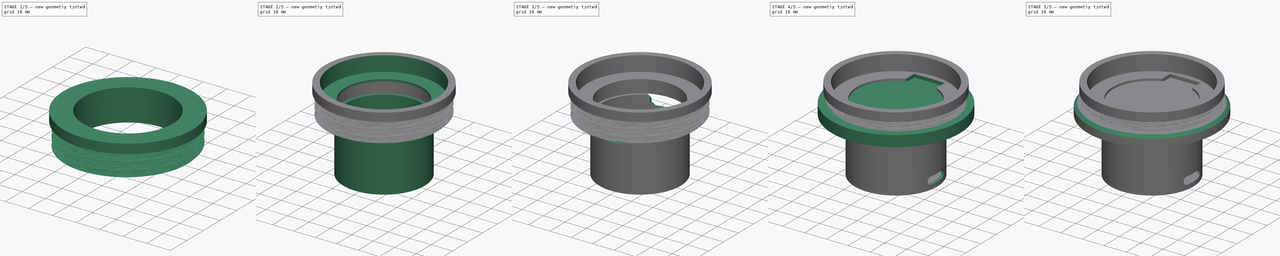
[diagram: build sequence overview — one tinted view per stage of 5, left to right]
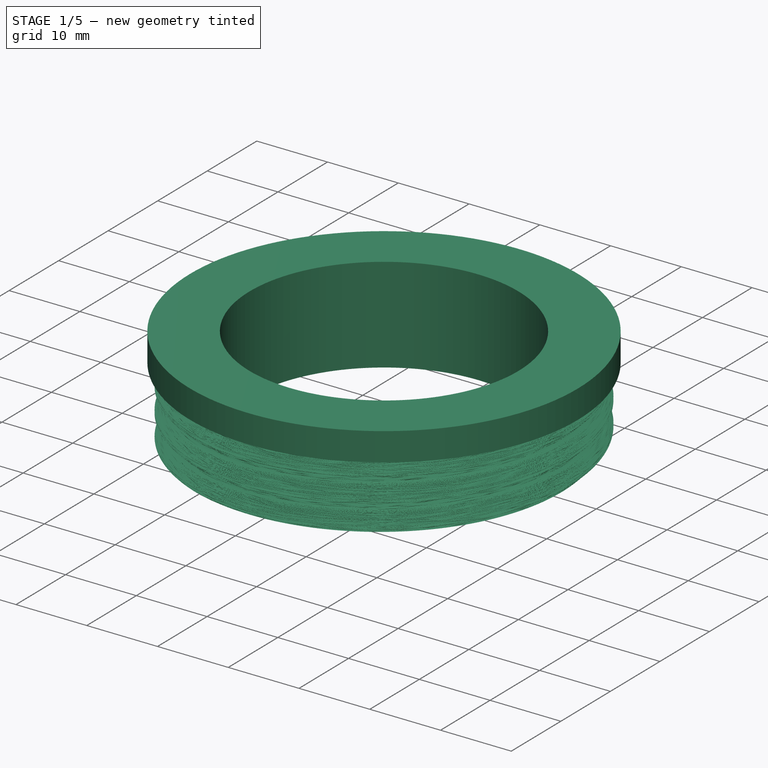
[diagram: stage 1 of 5 — iso view after this stage's code; geometry added in this stage tinted green]
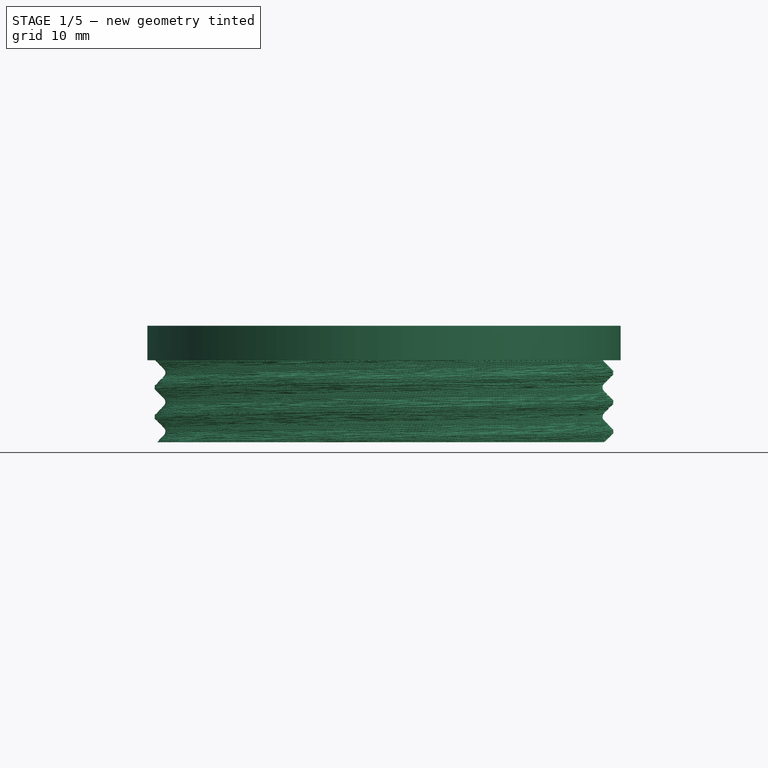
[diagram: stage 1 of 5 — front view after this stage's code; geometry added in this stage tinted green]
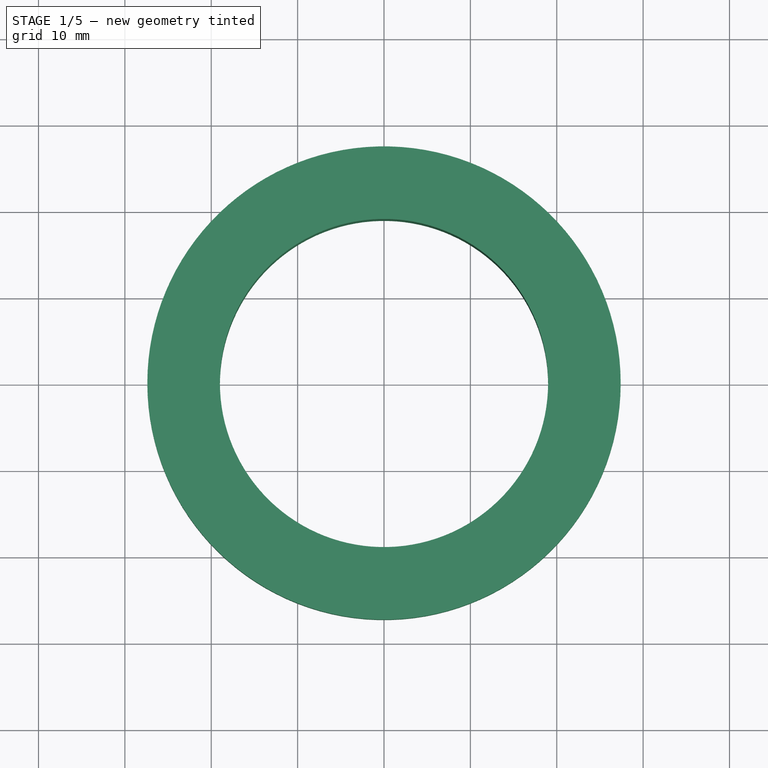
[diagram: stage 1 of 5 — top view after this stage's code; geometry added in this stage tinted green]
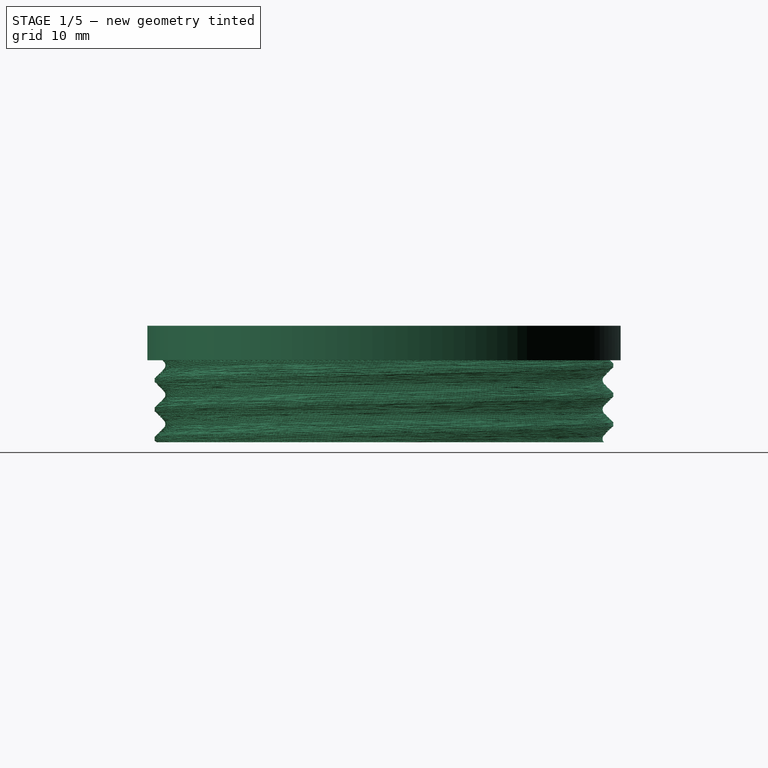
[diagram: stage 1 of 5 — right view after this stage's code; geometry added in this stage tinted green]
FCSTD DOCUMENT  (FreeCAD 0.21R33771 (Git))
Label: MSALEDFrontPiece
License: All rights reserved
LicenseURL: https://en.wikipedia.org/wiki/All_rights_reserved
objects: Sketcher::SketchObject×7, PartDesign::Pad×4, PartDesign::Body×4, PartDesign::Chamfer×3, PartDesign::Thickness×2, PartDesign::SubtractiveCylinder×2, PartDesign::SubtractiveBox×2, PartDesign::Pocket×2, Part::Part2DObjectPython×1, Part::Helix×1, PartDesign::AdditivePipe×1, PartDesign::AdditiveCylinder×1
note: 47 computed .brp shape members not serialized (recipe doc carries the construction recipe); baked Part::Feature solids carry a one-line shape summary decoded from their .brp

FEATURE [PartDesign::Body] Body003  label="CapLightInsert"
  Group = -> [Sketch007,Pad005]
  Origin = -> Origin003
  Placement = pos=(0,0,2) rot=(0,0,1;0rad)
  Tip = -> Pad005
FEATURE [Sketcher::SketchObject] Sketch008
  FullyConstrained = true
  MapMode = 5
  Support = -> [XY_Plane004]
FEATURE [Part::Part2DObjectPython] VThreadProfile  # Draft 2D object (typed FeaturePython)
  Area = 2113.6
  Closed = true
  Continuity = C2
  Height = 13
  Helix = Helix
  Instructions = Expand this with the ... button to view instructions | Sweep this object along a helix of the same pitch to produce your thread. | It is recommended to make the helix in the ThreadProfile workbench. | If there is an active Body the ThreadProfile object will be put into it.,If not it can be dragged and dropped into the body later. | If there is an active Body when the helix is made there will be made a ShapeBinder for it | For internal threads you will need to cut the Sweep object out of a cylinder, or if using Part Design sweep it as a Subtractive Pipe. | Always use Frenet mode | I have provided some presets, but it is possible there could be some errors.  Double check for mission critical applications. | Also, the tolerances might be different from what you wish to have.  I believe the internal minor diameters are all minimum and the external are all maximum.
  InternalOrExternal = 1
  MakeFace = true
  MinorDiameter = 51
  Parameterization = 1
  Pitch = 3.4
  Points = (144) [(25.471,1.11364,0),(25.3762,2.22324,0),(25.2354,3.32698,0),(25.0485,4.42299,0),(24.8157,5.50941,0),(24.5374,6.58435,0),(24.2139,7.64594,0),+137 more]
  Presets = 0
  Quality = 5
  ThreadCount = 3.82353
  Variants = 1
  Version = 1.89
  external2S_data = [-0.00461051,-0.00886426,-0.0128148,-0.0165028,-0.0199596,-0.0232105,-0.0262759,-0.0291725,-0.0319145,-0.0345137,-0.0369805,-0.0393235,-0.0415505,-0.0436681,-0.0456823,-0.0475981,-0.0494204,-0.0511532,-0.0528003,-0.0543649,-0.0558502,+698 more]
  external3S_data = [-0.00677828,-0.0128149,-0.0182584,-0.0232106,-0.0277444,-0.0319145,-0.0357632,-0.0393236,-0.0426227,-0.0456823,-0.0485208,-0.0511533,-0.0535928,-0.0558503,-0.0579353,-0.059856,-0.0616195,-0.0632319,-0.0646984,-0.0660239,-0.0672123,+698 more]
  external45_data = [-0.00137363,-0.00271738,-0.00403219,-0.00531893,-0.00657844,-0.00781148,-0.00901878,-0.010201,-0.0113589,-0.012493,-0.0136039,-0.0146921,-0.0157583,-0.0168028,-0.0178261,-0.0188288,-0.0198112,-0.0207738,-0.0217169,-0.0226409,-0.0235462,+698 more]
  external_data = [-0.00235387,-0.00461052,-0.00677828,-0.00886428,-0.0108747,-0.0128149,-0.0146895,-0.0165028,-0.0182584,-0.0199597,-0.0216095,-0.0232106,-0.0247653,-0.0262759,-0.0277444,-0.0291725,-0.0305621,-0.0319145,-0.0332313,-0.0345138,-0.0357632,+698 more]
  internal2S_data = [0,0,0,0,0,0,0,0,0,0,0,0,0,0,0,0,0,0,0,0,0,0,0,0,0,0,0,0,0,0,0,0,0,0,0,0,0,0,0,0,0,0,0,0,0,0,0,0,0,0,0,0,0,0,0,0,0,0,0,0,0,0,0,0,0,0,0,0,0,0,0,0,0,0,0,0,0,0,0,0,0,0,0,0,0,0,0,0,0,0,0.00481128,0.00962256,0.0144338,0.0192451,0.0240564,+624 more]
  internal3S_data = [0,0,0,0,0,0,0,0,0,0,0,0,0,0,0,0,0,0,0,0,0,0,0,0,0,0,0,0,0,0,0,0,0,0,0,0,0,0,0,0,0,0,0,0,0,0,0,0,0,0,0,0,0,0,0,0,0,0,0,0,0.00721688,0.0144338,0.0216506,0.0288675,0.0360844,0.0433013,0.0505181,0.057735,0.0649519,0.0721688,0.0793857,0.0866025,+647 more]
  internal45_data = [0,0,0,0,0,0,0,0,0,0,0,0,0,0,0,0,0,0,0,0,0,0,0,0,0,0,0,0,0,0,0,0,0,0,0,0,0,0,0,0,0,0,0,0,0,0,0,0,0,0,0,0,0,0,0,0,0,0,0,0,0,0,0,0,0,0,0,0,0,0,0,0,0,0,0,0,0,0,0,0,0,0,0,0,0,0,0,0,0,0,0,0,0,0,0,0,0,0,0,0,0,0,0,0,0,0,0,0,0,0,0,0,0,0,0,0,0,0,0,0,+599 more]
  internal_data = [0,0,0,0,0,0,0,0,0,0,0,0,0,0,0,0,0,0,0,0,0,0,0,0,0,0,0,0,0,0,0,0,0,0,0,0,0,0,0,0,0,0,0,0,0,0,0,0,0,0,0,0,0,0,0,0,0,0,0,0,0,0,0,0,0,0,0,0,0,0,0,0,0,0,0,0,0,0,0,0,0,0,0,0,0,0,0,0,0,0,0,0,0,0,0,0,0,0,0,0,0,0,0,0,0,0,0,0,0,0,0,0,0,0,0,0,0,0,0,0,+599 more]
  preset_names = <blob: 3959 chars omitted>
  presets_data = [0,0,0,2.20878,24.1173,24.6888,0.25,0.693,0.729,0.25,0.793,0.829,0.25,0.893,0.929,0.3,1.032,1.075,0.35,1.171,1.221,0.35,1.371,1.421,0.4,1.509,1.567,0.45,1.648,1.713,0.45,1.948,2.013,0.5,2.387,2.459,0.6,2.764,2.85,0.7,3.141,3.242,0.75,3.58,+712 more]
FEATURE [Part::Helix] Helix
  Angle = 0
  AttacherType = Attacher::AttachEngine3D
  Height = 13
  LocalCoord = 0
  Pitch = 3.4
  Radius = 0.1
  SegmentLength = 1
  Style = 0
  expr: AttachmentOffset = VThreadProfile.AttachmentOffset
  expr: Height = VThreadProfile.ThreadCount * VThreadProfile.Pitch
  expr: MapMode = VThreadProfile.MapMode
  expr: MapPathParameter = VThreadProfile.MapPathParameter
  expr: MapReversed = VThreadProfile.MapReversed
  expr: Pitch = VThreadProfile.Pitch
  expr: SegmentLength = 1
  expr: Support = VThreadProfile.Support
FEATURE [PartDesign::AdditivePipe] AdditivePipe
  AuxilleryCurvelinear = true
  AuxillerySpineTangent = false
  Binormal = (0,0,0)
  Mode = 2
  Profile = -> VThreadProfile
  Spine = -> Helix [Edge1,Edge2,Edge3,Edge4]
  SpineTangent = false
  Transformation = 0
  Transition = 0
FEATURE [PartDesign::AdditiveCylinder] Cylinder
  Angle = 360
  AttacherType = Attacher::AttachEngine3D
  AttachmentOffset = pos=(0,0,9.5) rot=(0,0,1;0rad)
  BaseFeature = -> AdditivePipe
  FirstAngle = 0
  Height = 4
  MapMode = 5
  Placement = pos=(0,0,9.5) rot=(0,0,1;0rad)
  Radius = 27.4
  SecondAngle = 0
  Support = -> [XY_Plane004]
FEATURE [PartDesign::SubtractiveCylinder] Cylinder001
  Angle = 360
  AttacherType = Attacher::AttachEngine3D
  AttachmentOffset = pos=(0,0,-19) rot=(0,0,1;0rad)
  BaseFeature = -> Cylinder
  FirstAngle = 0
  Height = 50
  MapMode = 5
  Placement = pos=(0,0,-19) rot=(0,0,1;0rad)
  Radius = 19
  SecondAngle = 0
  Support = -> [XY_Plane004]
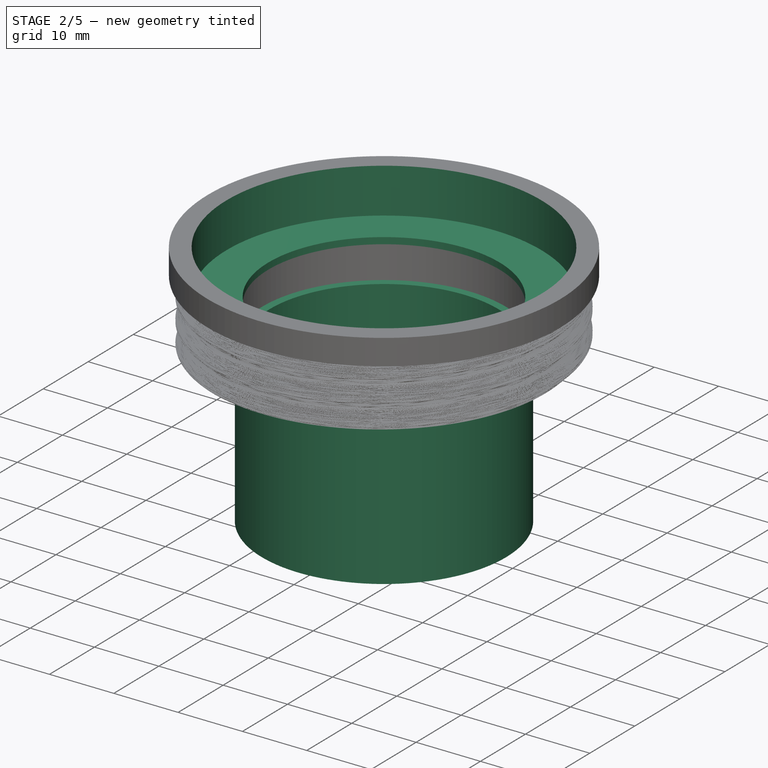
[diagram: stage 2 of 5 — iso view after this stage's code; geometry added in this stage tinted green]
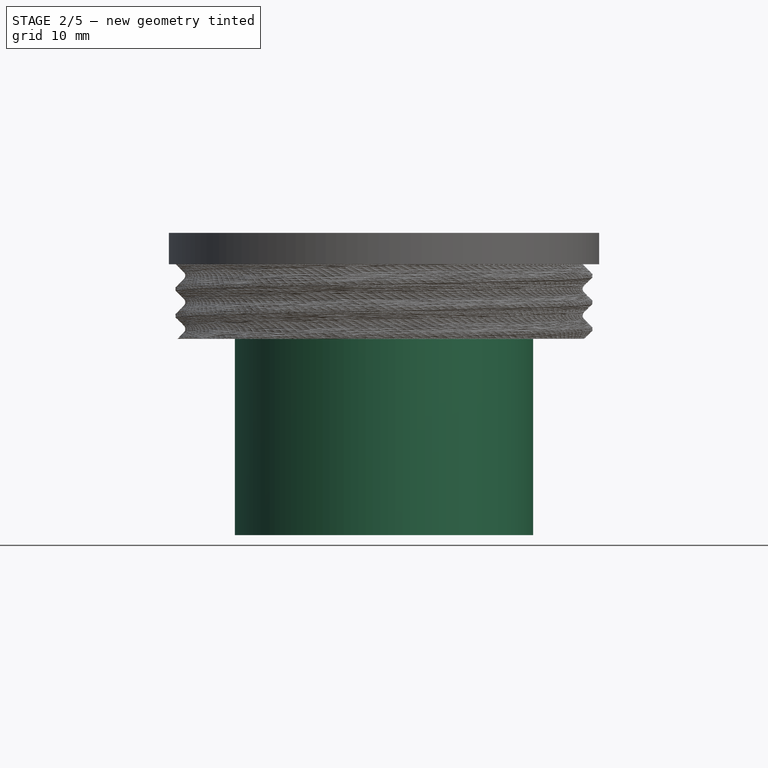
[diagram: stage 2 of 5 — front view after this stage's code; geometry added in this stage tinted green]
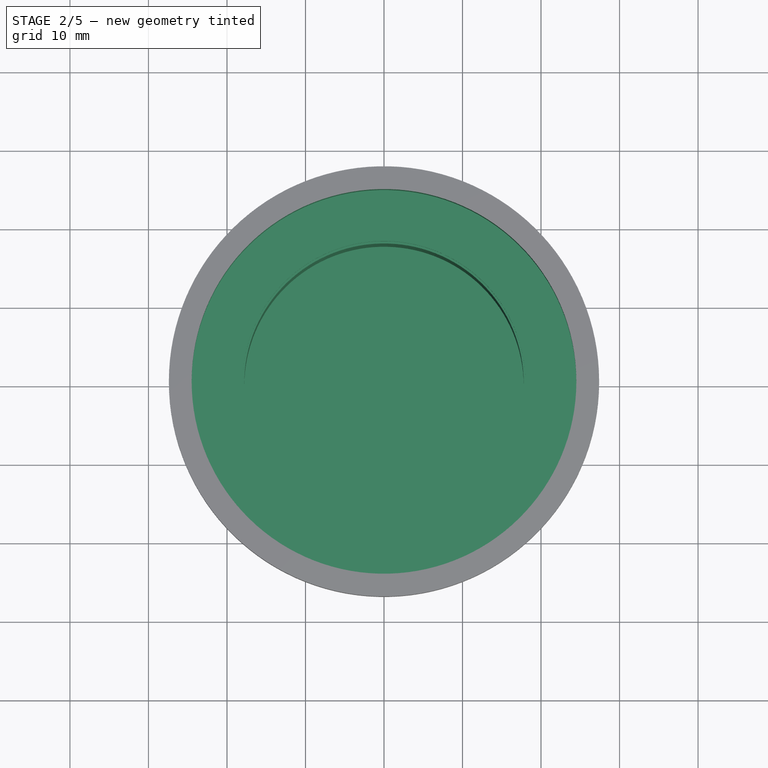
[diagram: stage 2 of 5 — top view after this stage's code; geometry added in this stage tinted green]
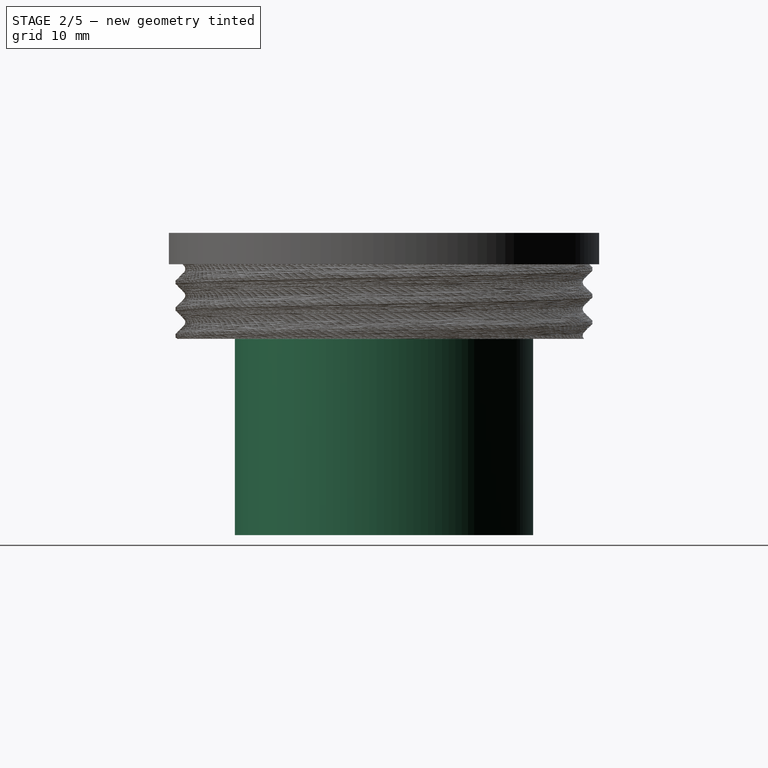
[diagram: stage 2 of 5 — right view after this stage's code; geometry added in this stage tinted green]
FEATURE [PartDesign::SubtractiveCylinder] Cylinder002
  Angle = 360
  AttacherType = Attacher::AttachEngine3D
  AttachmentOffset = pos=(0,0,-7) rot=(0,0,1;0rad)
  BaseFeature = -> Cylinder001
  FirstAngle = 0
  Height = 10
  MapMode = 5
  Placement = pos=(0,0,6.5) rot=(0,0,1;0rad)
  Radius = 24.5
  SecondAngle = 0
  Support = -> [Cylinder001]
FEATURE [Sketcher::SketchObject] Sketch010
  FullyConstrained = true
  MapMode = 5
  Support = -> [XY_Plane006]
  sketch-geometry (1):
    g0: Circle CenterX=0 CenterY=0 CenterZ=0 NormalX=0 NormalY=0 NormalZ=1 AngleXU=0 Radius=19
  constraints (2):
    c: Coincident(g0,g-1)
    c: Diameter(g0) = 38
FEATURE [PartDesign::Pad] Pad007
  Direction = (0,0,1)
  Length = 25
  Length2 = 10
  Profile = -> Sketch010
  ReferenceAxis = -> Sketch010 [N_Axis]
  Reversed = true
  Type = 0
FEATURE [PartDesign::Thickness] Thickness001
  Base = -> Pad007 [Face2]
  BaseFeature = -> Pad007
  Intersection = false
  Join = 0
  Mode = 0
  Reversed = true
  SupportTransform = false
  Value = 1.2
FEATURE [PartDesign::Body] Body006  label="ElectronicsHolder"
  Group = -> [Sketch010,Pad007,Thickness001,Box001,Chamfer002,Sketch012,Pocket,Sketch013,Pocket002]
  Origin = -> Origin006
  Placement = pos=(0,0,-3) rot=(0,0,1;0rad)
  Tip = -> Pocket002
FEATURE [PartDesign::Pad] Pad008
  BaseFeature = -> Cylinder002
  Direction = (0,0,1)
  Length = 1
  Length2 = 10
  Placement = pos=(0,0,6.5) rot=(0,0,1;0rad)
  Profile = -> Sketch011
  ReferenceAxis = -> Sketch011 [N_Axis]
  Reversed = true
  Type = 0
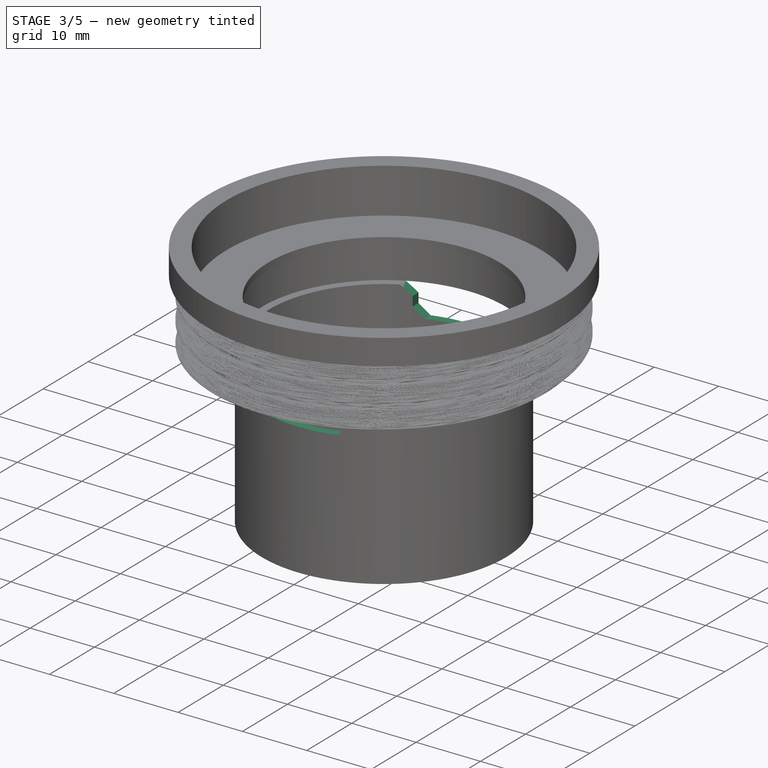
[diagram: stage 3 of 5 — iso view after this stage's code; geometry added in this stage tinted green]
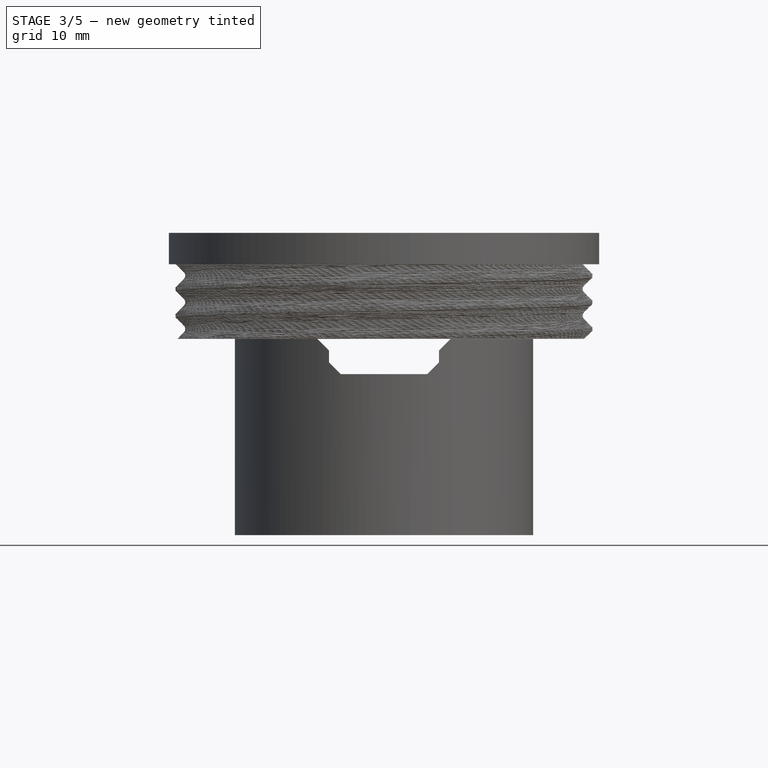
[diagram: stage 3 of 5 — front view after this stage's code; geometry added in this stage tinted green]
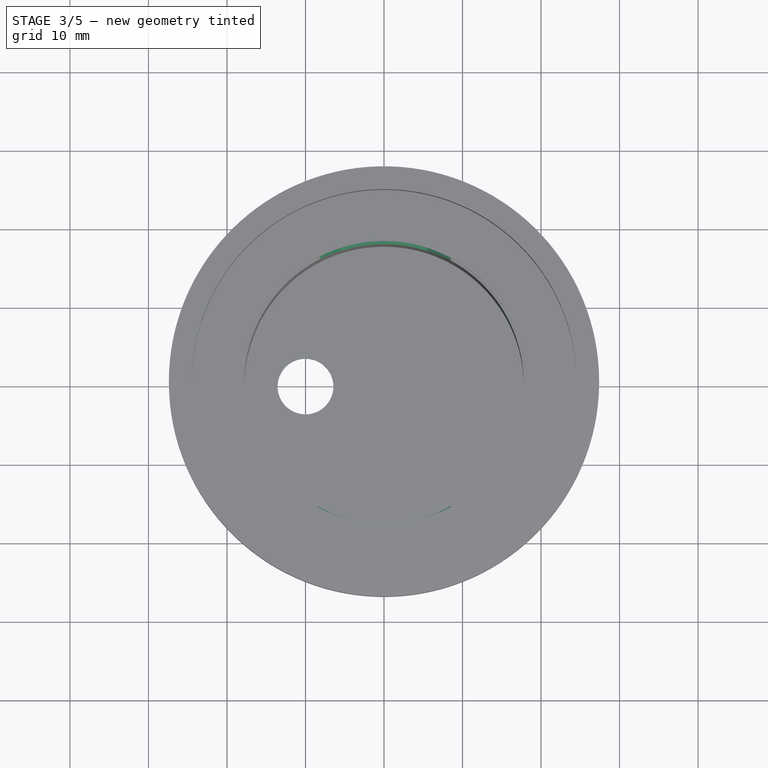
[diagram: stage 3 of 5 — top view after this stage's code; geometry added in this stage tinted green]
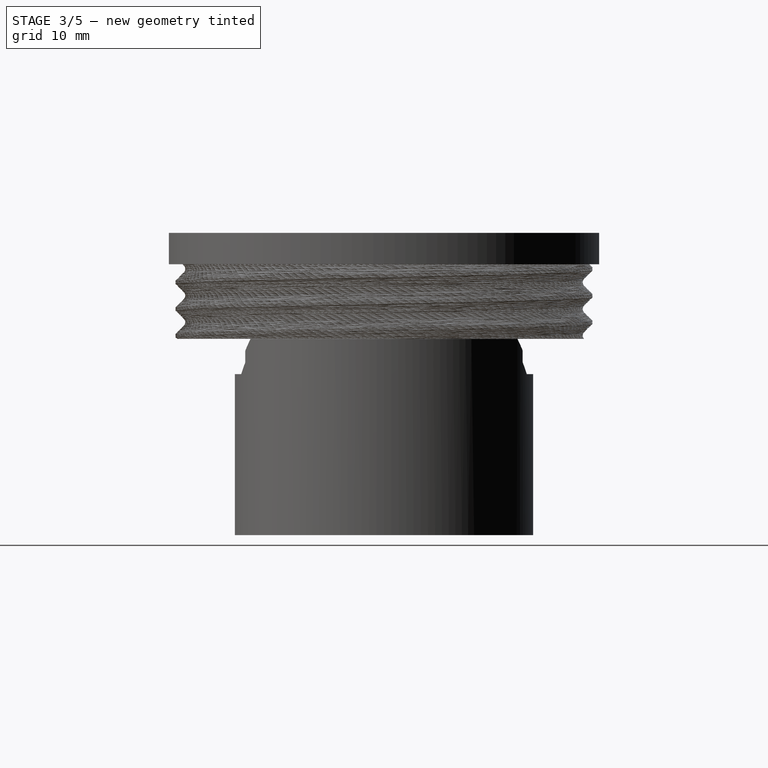
[diagram: stage 3 of 5 — right view after this stage's code; geometry added in this stage tinted green]
FEATURE [Sketcher::SketchObject] Sketch011
  AttachmentOffset = pos=(0,0,6.5) rot=(0,0,1;0rad)
  FullyConstrained = true
  MapMode = 5
  Placement = pos=(0,0,6.5) rot=(0,0,1;0rad)
  Support = -> [XY_Plane004]
  sketch-geometry (2):
    g0: Circle CenterX=0 CenterY=0 CenterZ=0 NormalX=0 NormalY=0 NormalZ=1 AngleXU=0 Radius=19
    g1: Circle CenterX=0 CenterY=0 CenterZ=0 NormalX=0 NormalY=0 NormalZ=1 AngleXU=0 Radius=18
  constraints (4):
    c: Coincident(g0,g-1)
    c: Coincident(g1,g0)
    c: Diameter(g0) = 38
    c: Diameter(g1) = 36
FEATURE [PartDesign::SubtractiveBox] Box001
  AttacherType = Attacher::AttachEngine3D
  AttachmentOffset = pos=(-7,-24,-4.5) rot=(0,0,1;0rad)
  BaseFeature = -> Thickness001
  Height = 10
  Length = 14
  MapMode = 5
  Placement = pos=(-7,-24,-4.5) rot=(0,0,1;0rad)
  Support = -> [XY_Plane004]
  Width = 50
FEATURE [PartDesign::Chamfer] Chamfer002
  Angle = 45
  Base = -> Box001 [Edge16,Edge15,Edge27,Edge12,Edge25,Edge23,Edge18,Edge21]
  BaseFeature = -> Box001
  ChamferType = 0
  FlipDirection = false
  Placement = pos=(-7,-24,-4.5) rot=(0,0,1;0rad)
  Size = 1.5
  Size2 = 1
  SupportTransform = false
  UseAllEdges = false
FEATURE [Sketcher::SketchObject] Sketch012
  AttachmentOffset = pos=(0,0,-4) rot=(0,0,1;0rad)
  FullyConstrained = true
  MapMode = 5
  Placement = pos=(0,0,-4) rot=(0,0,1;0rad)
  Support = -> [XY_Plane006]
  sketch-geometry (1):
    g0: Circle CenterX=-10 CenterY=0 CenterZ=0 NormalX=0 NormalY=0 NormalZ=1 AngleXU=0 Radius=3.55
  constraints (3):
    c: PointOnObject(g0,g-1)
    c: Diameter(g0) = 7.1
    c: Distance(g0,g-1) = 10
FEATURE [PartDesign::Pocket] Pocket
  BaseFeature = -> Chamfer002
  Direction = (0,0,-1)
  Length = 23
  Length2 = 5
  Placement = pos=(-7,-24,-4.5) rot=(0,0,1;0rad)
  Profile = -> Sketch012
  ReferenceAxis = -> Sketch012 [N_Axis]
  Type = 0
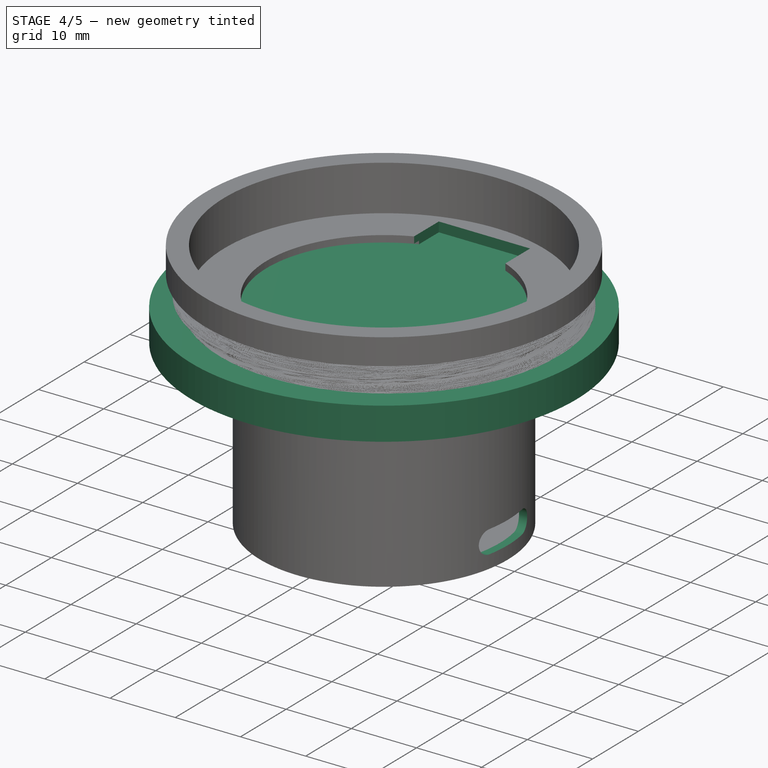
[diagram: stage 4 of 5 — iso view after this stage's code; geometry added in this stage tinted green]
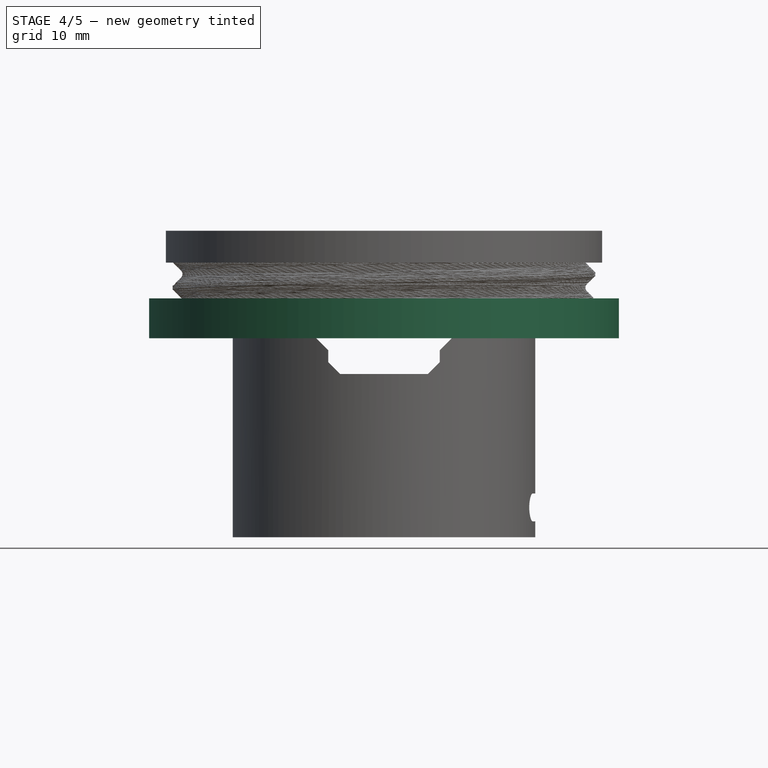
[diagram: stage 4 of 5 — front view after this stage's code; geometry added in this stage tinted green]
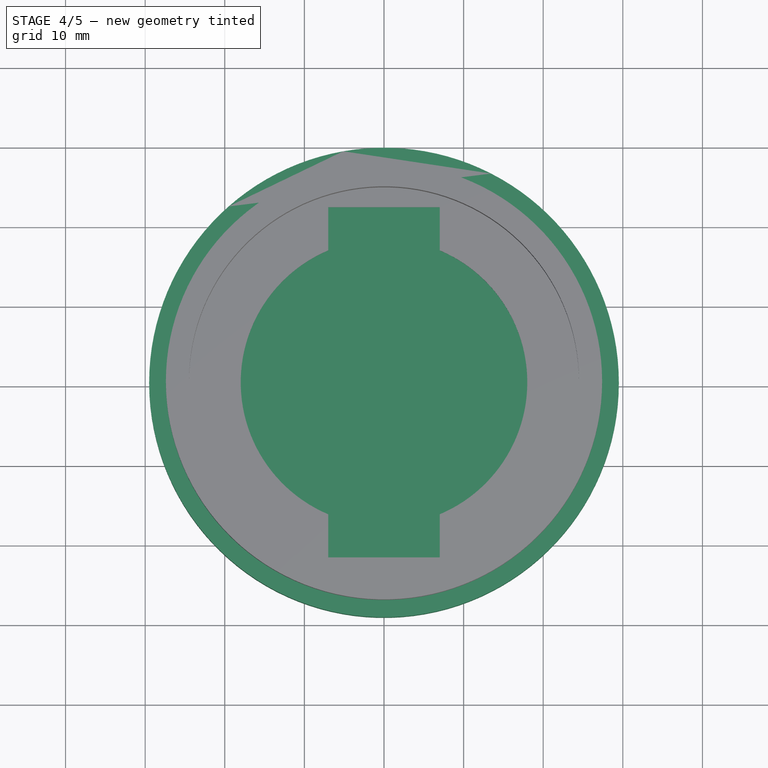
[diagram: stage 4 of 5 — top view after this stage's code; geometry added in this stage tinted green]
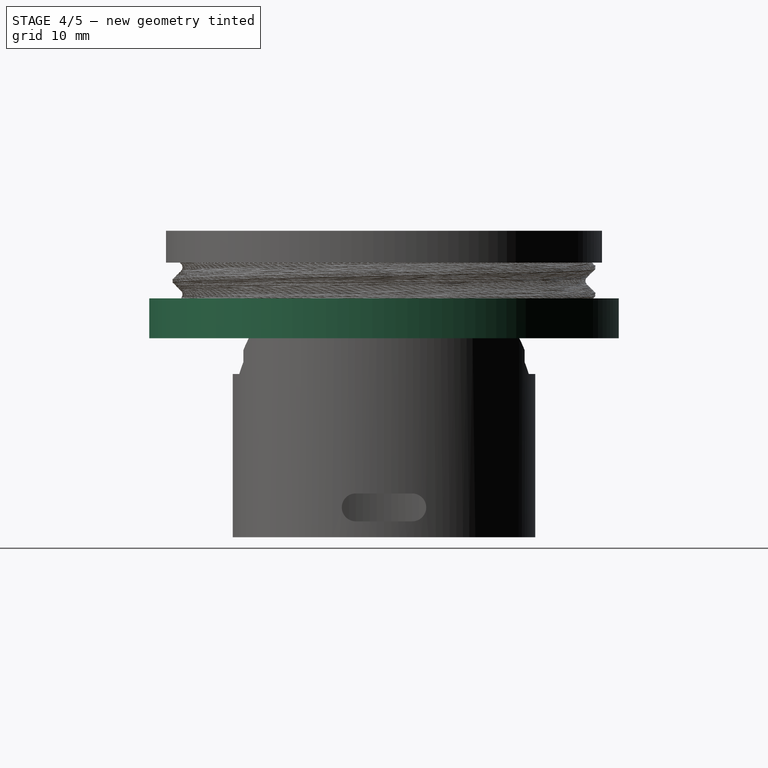
[diagram: stage 4 of 5 — right view after this stage's code; geometry added in this stage tinted green]
FEATURE [Sketcher::SketchObject] Sketch006
  FullyConstrained = true
  MapMode = 5
  Support = -> [XY_Plane002]
  sketch-geometry (1):
    g0: Circle CenterX=0 CenterY=0 CenterZ=0 NormalX=0 NormalY=0 NormalZ=1 AngleXU=0 Radius=29.5
  constraints (2):
    c: Coincident(g0,g-1)
    c: Diameter(g0) = 59
FEATURE [PartDesign::Pad] Pad004
  Direction = (0,0,1)
  Length = 5
  Length2 = 10
  Profile = -> Sketch006
  ReferenceAxis = -> Sketch006 [N_Axis]
  Type = 0
FEATURE [PartDesign::Body] Body002  label="Cap"
  Group = -> [Sketch006,Pad004,Thickness,Chamfer,Chamfer001]
  Origin = -> Origin002
  Placement = pos=(0,0,2) rot=(0,0,1;0rad)
  Tip = -> Chamfer001
FEATURE [Sketcher::SketchObject] Sketch007
  FullyConstrained = true
  MapMode = 5
  Support = -> [XY_Plane003]
  sketch-geometry (2):
    g0: Circle CenterX=0 CenterY=0 CenterZ=0 NormalX=0 NormalY=0 NormalZ=1 AngleXU=0 Radius=19
    g1: Circle CenterX=0 CenterY=0 CenterZ=0 NormalX=0 NormalY=0 NormalZ=1 AngleXU=0 Radius=24
  constraints (4):
    c: Coincident(g0,g-1)
    c: Coincident(g1,g0)
    c: Diameter(g1) = 48
    c: Diameter(g0) = 38
FEATURE [PartDesign::Pad] Pad005
  Direction = (0,0,1)
  Length = 5
  Length2 = 10
  Profile = -> Sketch007
  ReferenceAxis = -> Sketch007 [N_Axis]
  Type = 0
FEATURE [Sketcher::SketchObject] Sketch013
  AttachmentOffset = pos=(0,0,20) rot=(0,0,1;0rad)
  FullyConstrained = true
  MapMode = 5
  Placement = pos=(20,-4.4e-15,4.4e-15) rot=(0.57735,0.57735,0.57735;2.0944rad)
  Support = -> [YZ_Plane006]
  sketch-geometry (4):
    g0: ArcOfCircle CenterX=-3.55 CenterY=-21.25 CenterZ=0 NormalX=0 NormalY=0 NormalZ=1 AngleXU=0 Radius=1.75 StartAngle=1.5708 EndAngle=4.71239
    g1: ArcOfCircle CenterX=3.55 CenterY=-21.25 CenterZ=0 NormalX=0 NormalY=0 NormalZ=1 AngleXU=0 Radius=1.75 StartAngle=4.71239 EndAngle=7.85398
    g2: LineSegment StartX=-3.55 StartY=-23 StartZ=0 EndX=3.55 EndY=-23 EndZ=0
    g3: LineSegment StartX=3.55 StartY=-19.5 StartZ=0 EndX=-3.55 EndY=-19.5 EndZ=0
  constraints (9):
    c: Tangent(g0,g2) = -1.5708
    c: Tangent(g2,g1) = -1.5708
    c: Tangent(g1,g3) = -1.5708
    c: Tangent(g3,g0) = -1.5708
    c: Equal(g0,g1)
    c: Symmetric(g1,g0,g-2)
    c: DistanceY(g0,g-1) = 23
    c: DistanceY(g1,g1) = 3.5
    c: Distance(g1,g0) = 7.1
FEATURE [PartDesign::Pocket] Pocket002
  BaseFeature = -> Pocket
  Direction = (-1,2e-16,-3e-16)
  Length = 27
  Length2 = 5
  Placement = pos=(-7,-24,-4.5) rot=(0,0,1;0rad)
  Profile = -> Sketch013
  ReferenceAxis = -> Sketch013 [N_Axis]
  Type = 0
FEATURE [PartDesign::SubtractiveBox] Box
  AttacherType = Attacher::AttachEngine3D
  AttachmentOffset = pos=(-7,-22,-5) rot=(0,0,1;0rad)
  BaseFeature = -> Pad008
  Height = 10
  Length = 14
  MapMode = 5
  Placement = pos=(-7,-22,1.5) rot=(0,0,1;0rad)
  Support = -> [Cylinder002]
  Width = 44
FEATURE [PartDesign::Body] Body004  label="MSAInsert"
  Group = -> [Sketch008,VThreadProfile,Helix,AdditivePipe,Cylinder,Cylinder001,Cylinder002,Pad008,Box,Sketch011]
  Origin = -> Origin004
  Placement = pos=(0,0,-8.5) rot=(0,0,1;0rad)
  Tip = -> Box
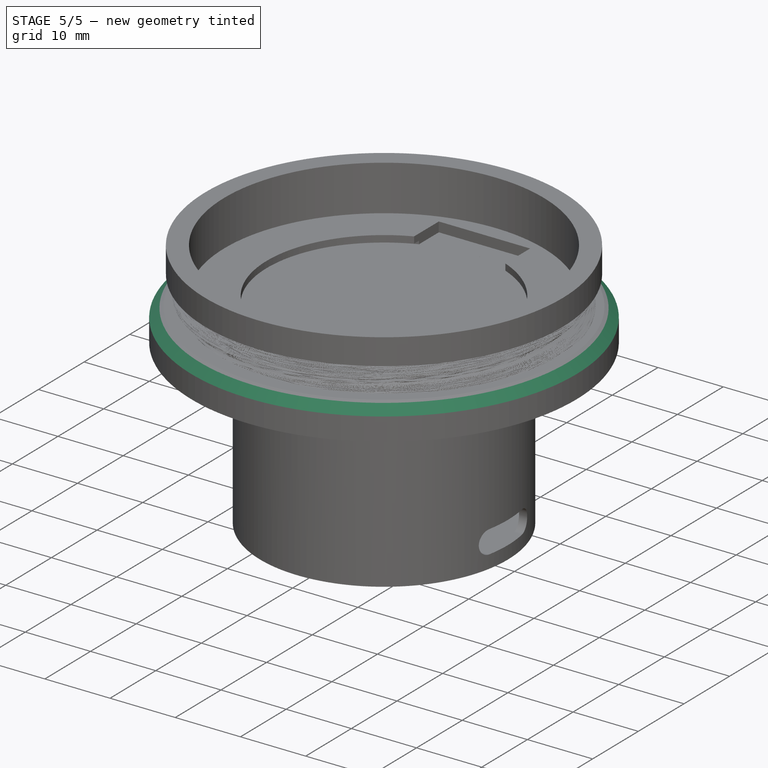
[diagram: stage 5 of 5 — iso view after this stage's code; geometry added in this stage tinted green]
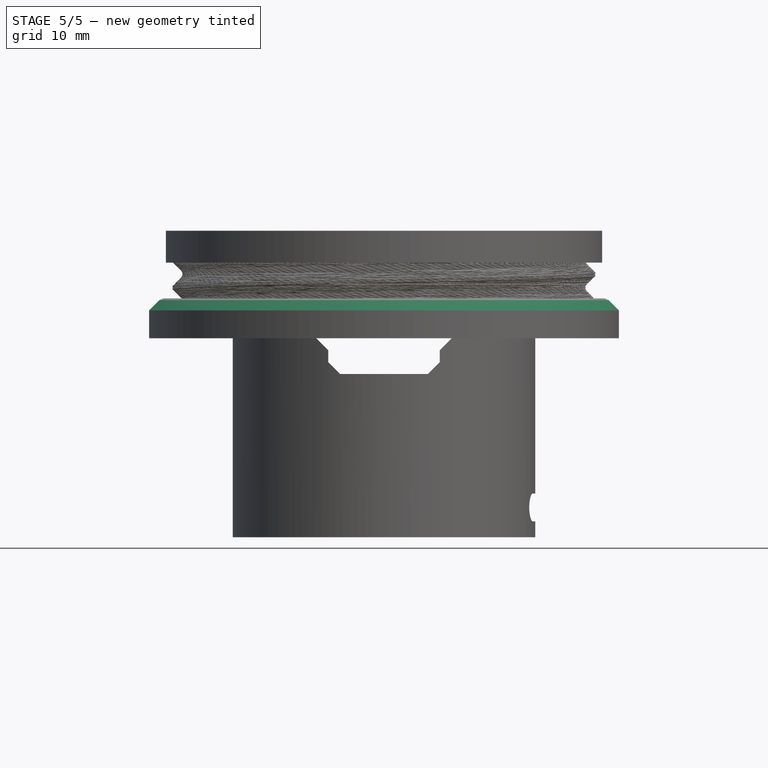
[diagram: stage 5 of 5 — front view after this stage's code; geometry added in this stage tinted green]
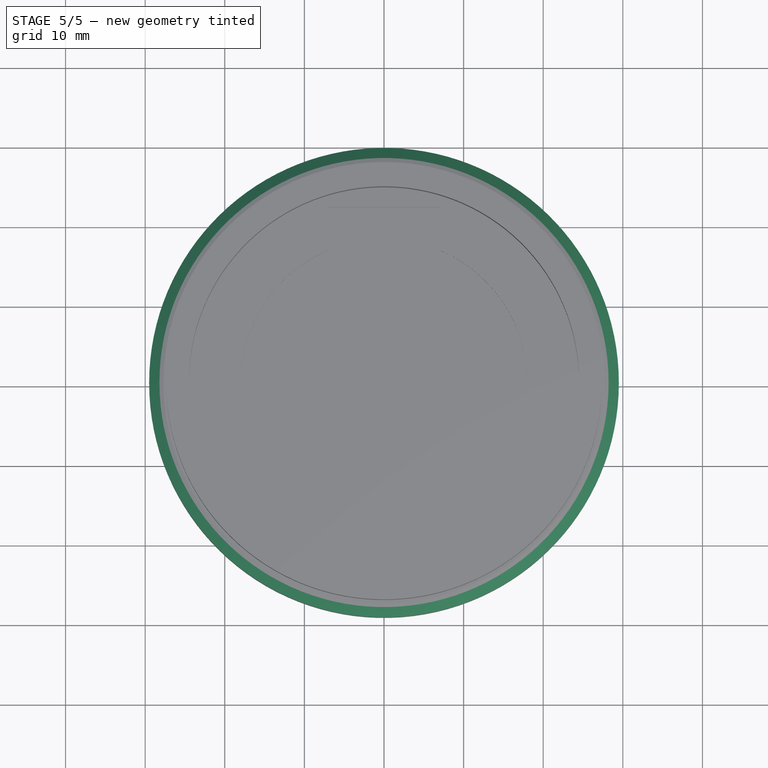
[diagram: stage 5 of 5 — top view after this stage's code; geometry added in this stage tinted green]
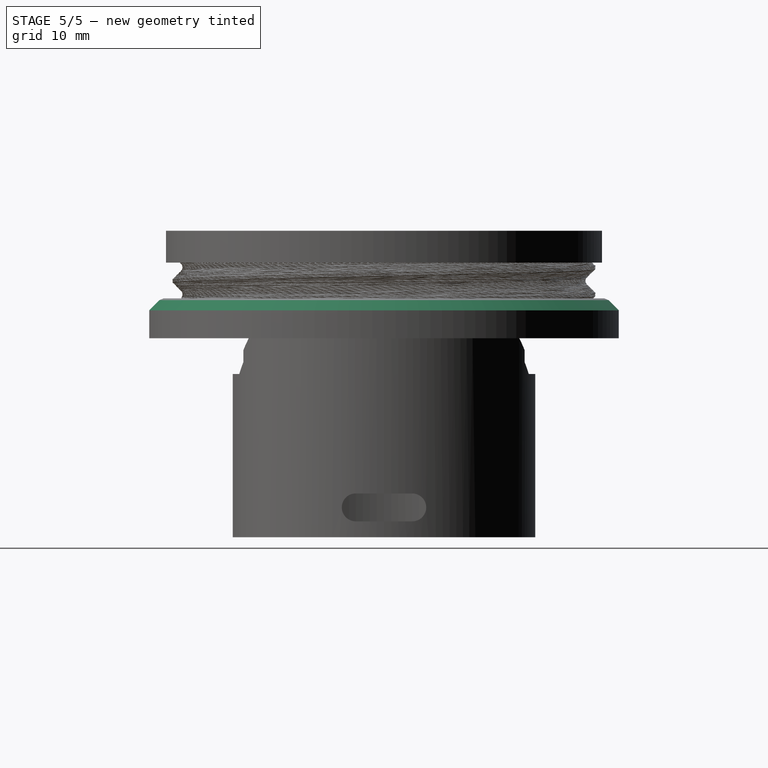
[diagram: stage 5 of 5 — right view after this stage's code; geometry added in this stage tinted green]
FEATURE [PartDesign::Thickness] Thickness
  Base = -> Pad004 [Face2]
  BaseFeature = -> Pad004
  Intersection = false
  Join = 0
  Mode = 0
  Reversed = true
  SupportTransform = false
  Value = 2.3
FEATURE [PartDesign::Chamfer] Chamfer
  Angle = 45
  Base = -> Thickness [Edge3]
  BaseFeature = -> Thickness
  ChamferType = 0
  FlipDirection = false
  Size = 1.5
  Size2 = 1
  SupportTransform = false
  UseAllEdges = false
FEATURE [PartDesign::Chamfer] Chamfer001
  Angle = 45
  Base = -> Chamfer [Edge5]
  BaseFeature = -> Chamfer
  ChamferType = 0
  FlipDirection = false
  Size = 0.3
  Size2 = 1
  SupportTransform = false
  UseAllEdges = false
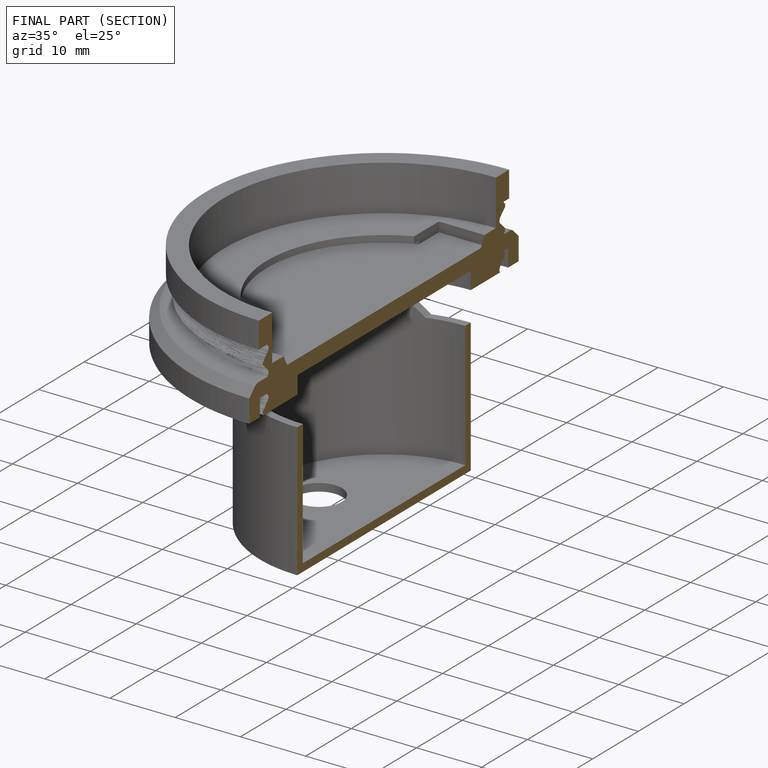
[diagram: finished part — half-section view (interior)]
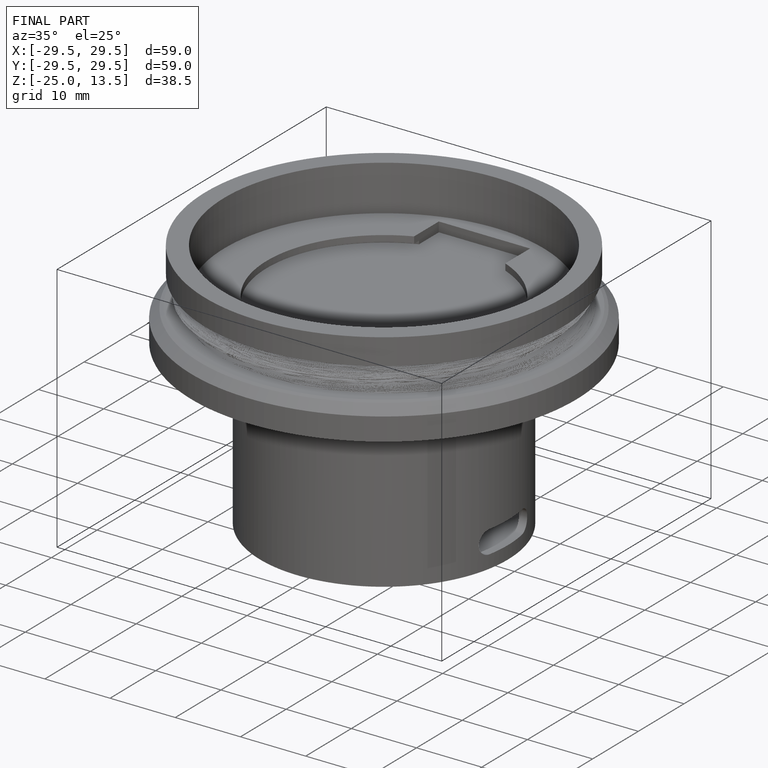
[diagram: finished part — iso view with bounding-box wireframe]
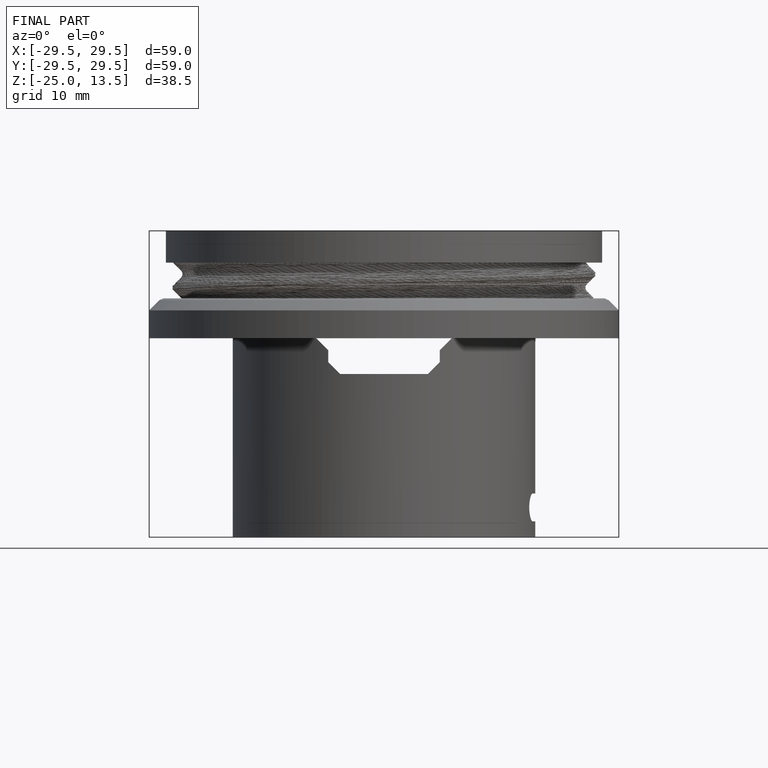
[diagram: finished part — front view with bounding-box wireframe]
